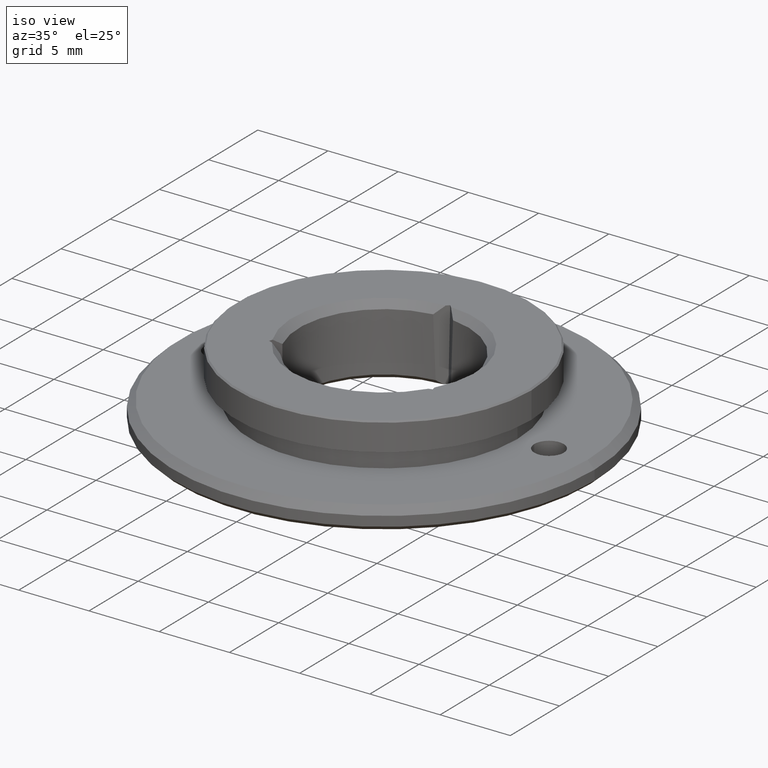
[diagram: clean part render]
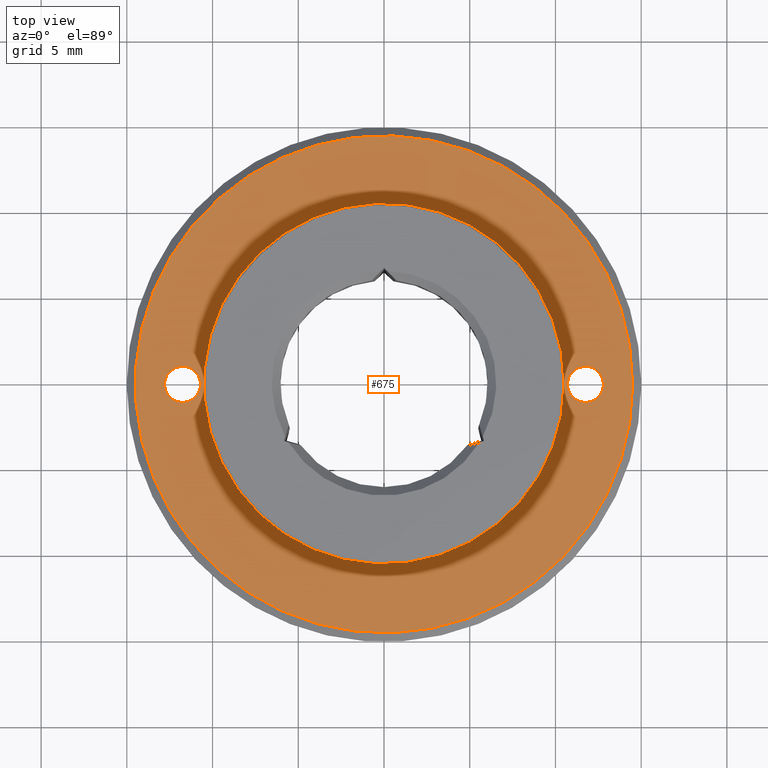
[diagram: tour spotlight — one face highlighted and labeled with its STEP entity id]
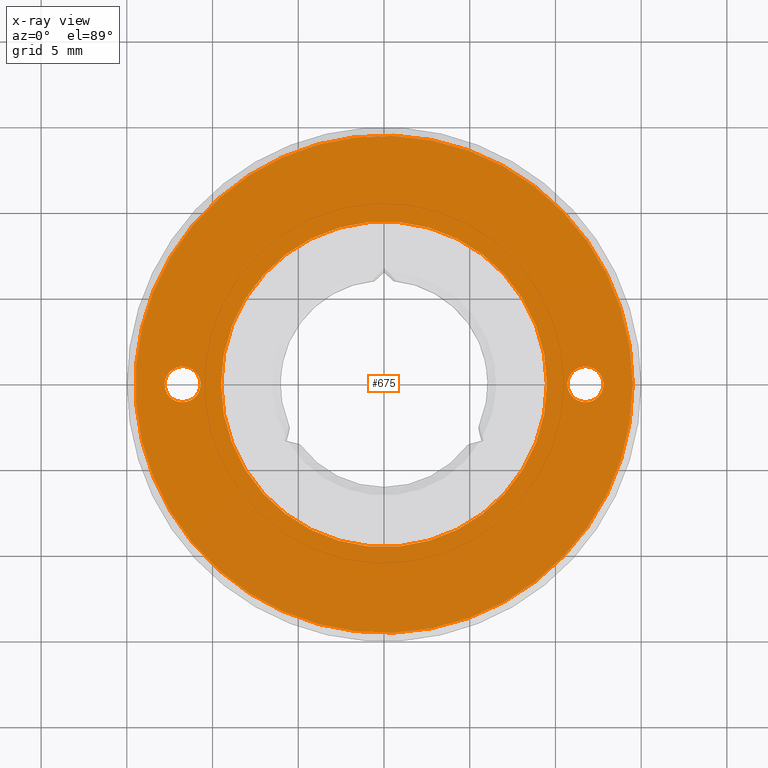
[diagram: x-ray of the same camera — body ghosted, this tour face saturated]
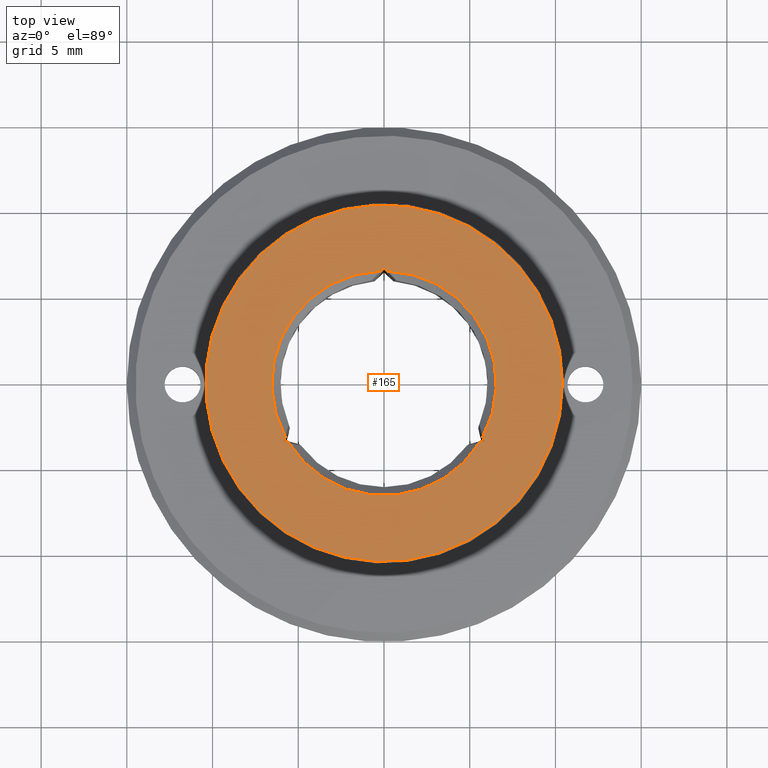
[diagram: tour spotlight — one face highlighted and labeled with its STEP entity id]
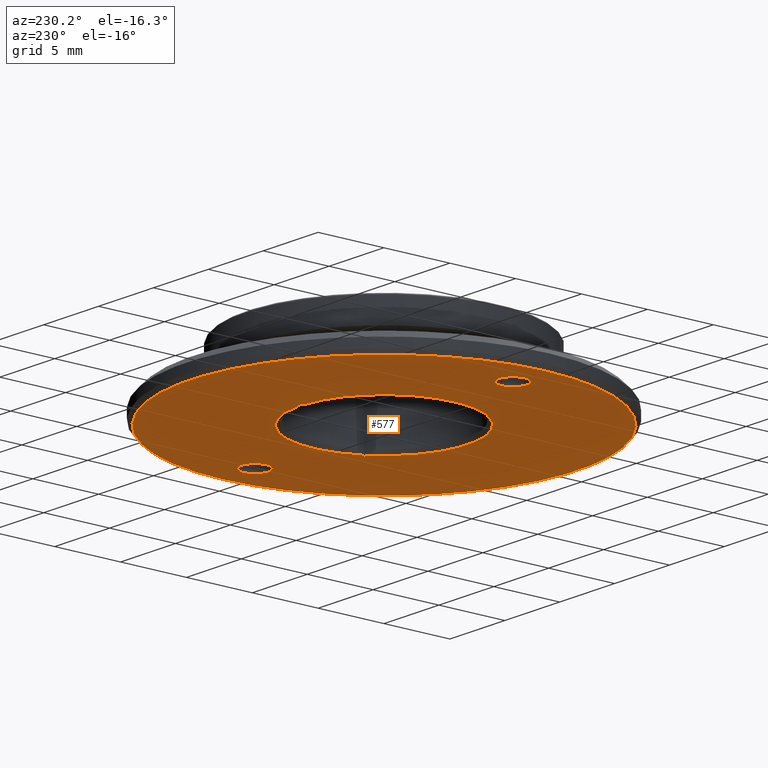
[diagram: tour spotlight — one face highlighted and labeled with its STEP entity id]
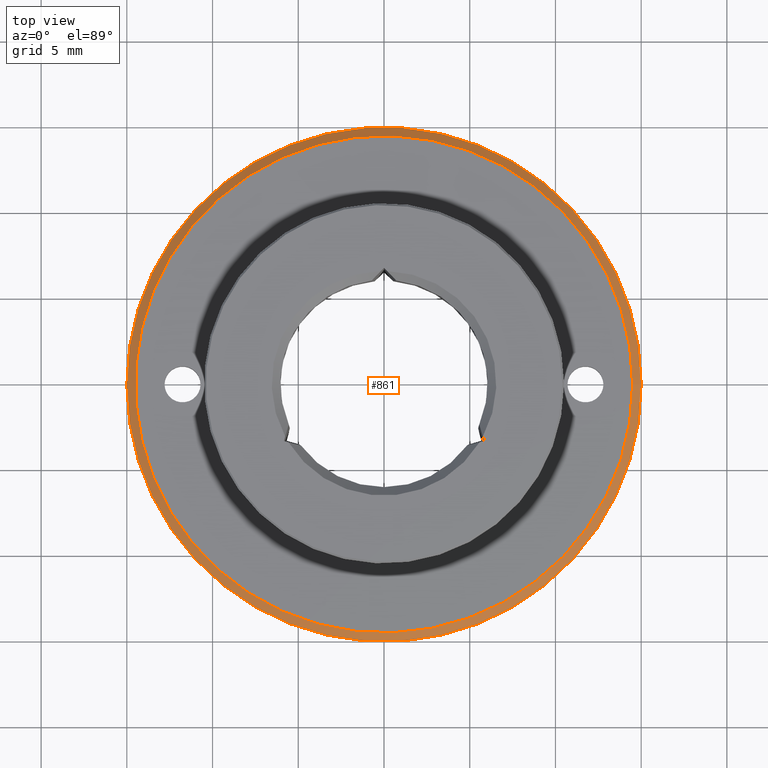
[diagram: tour spotlight — one face highlighted and labeled with its STEP entity id]
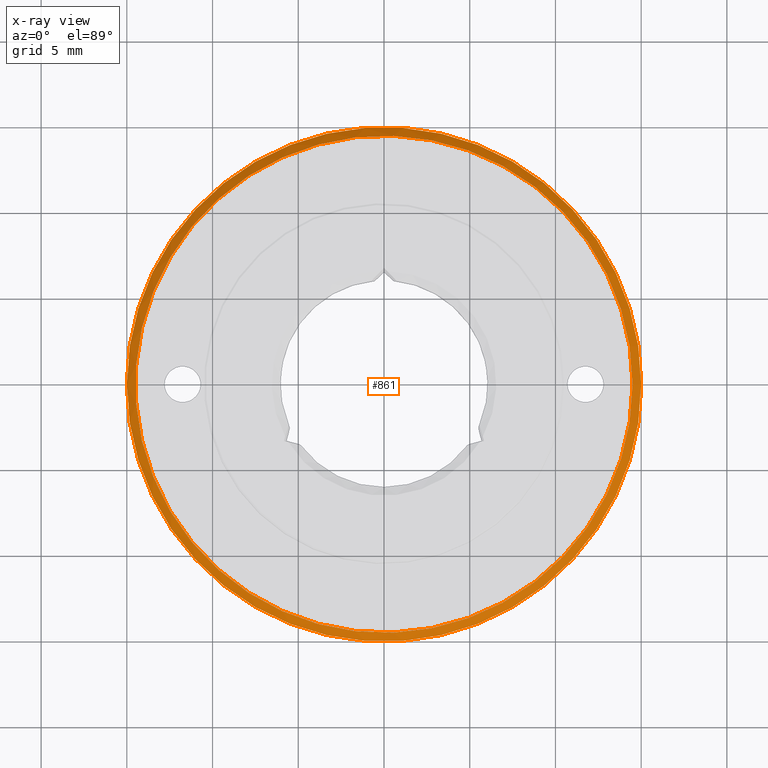
[diagram: x-ray of the same camera — body ghosted, this tour face saturated]
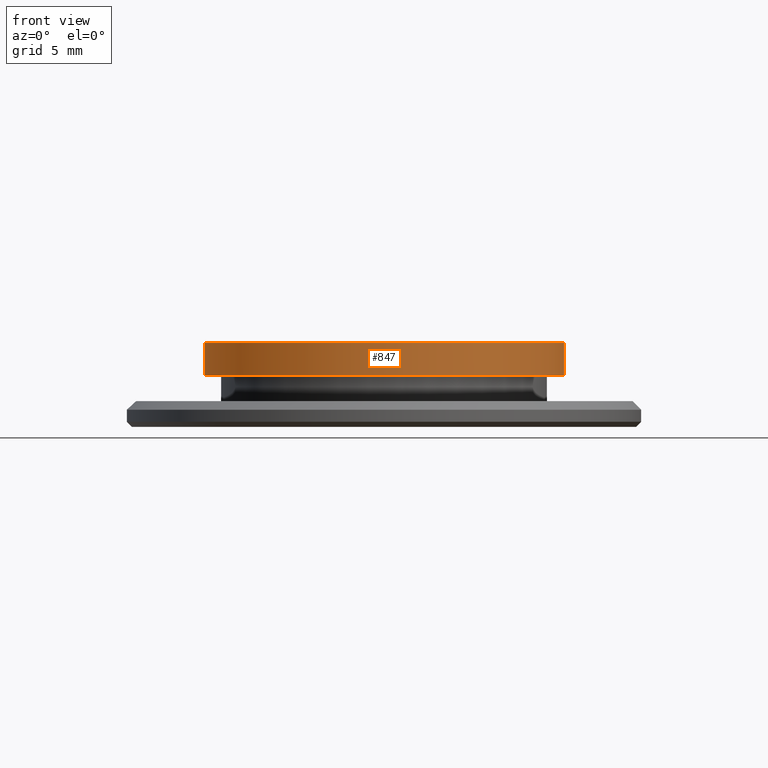
[diagram: tour spotlight — one face highlighted and labeled with its STEP entity id]
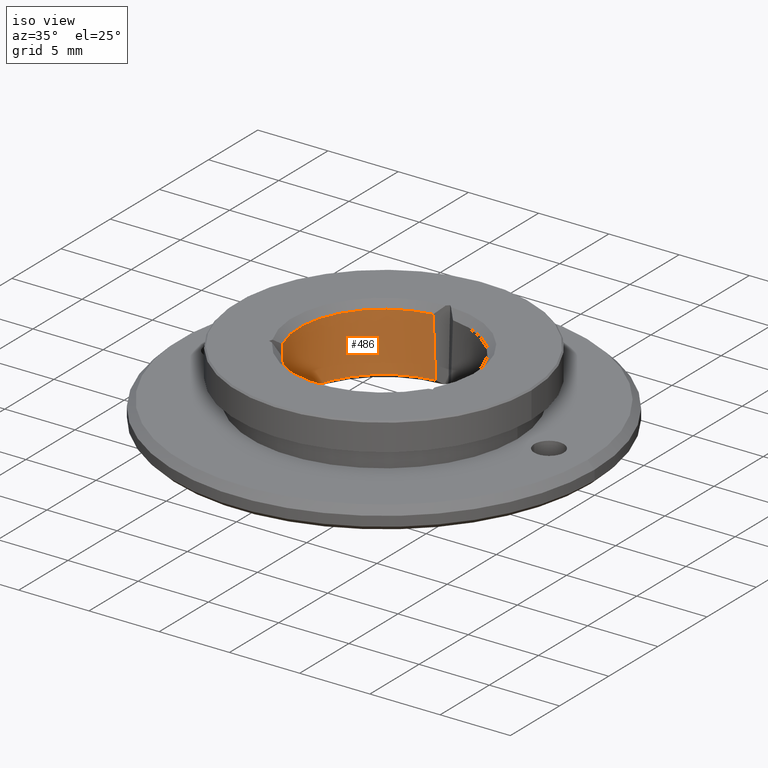
[diagram: tour spotlight — one face highlighted and labeled with its STEP entity id]
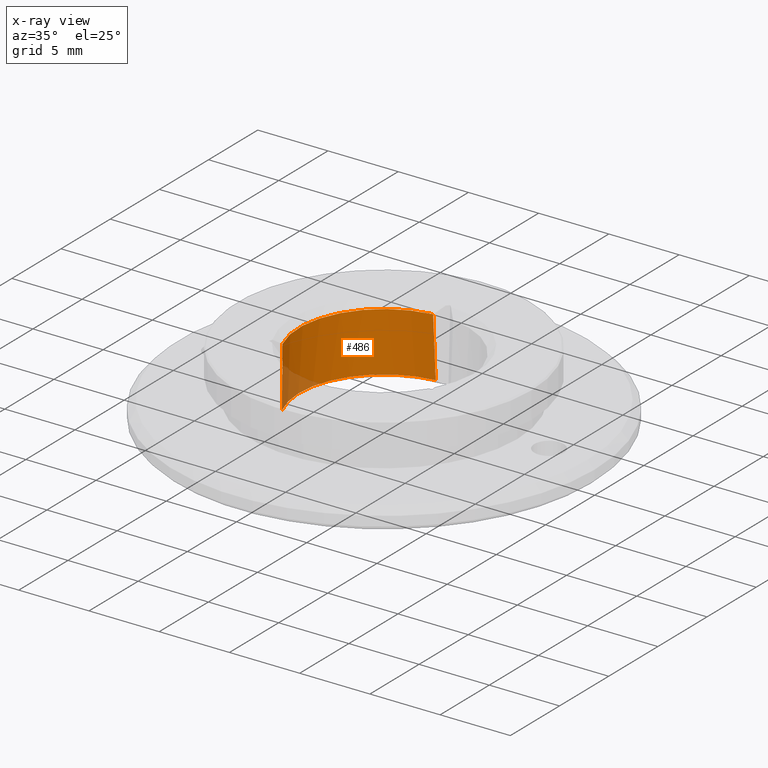
[diagram: x-ray of the same camera — body ghosted, this tour face saturated]
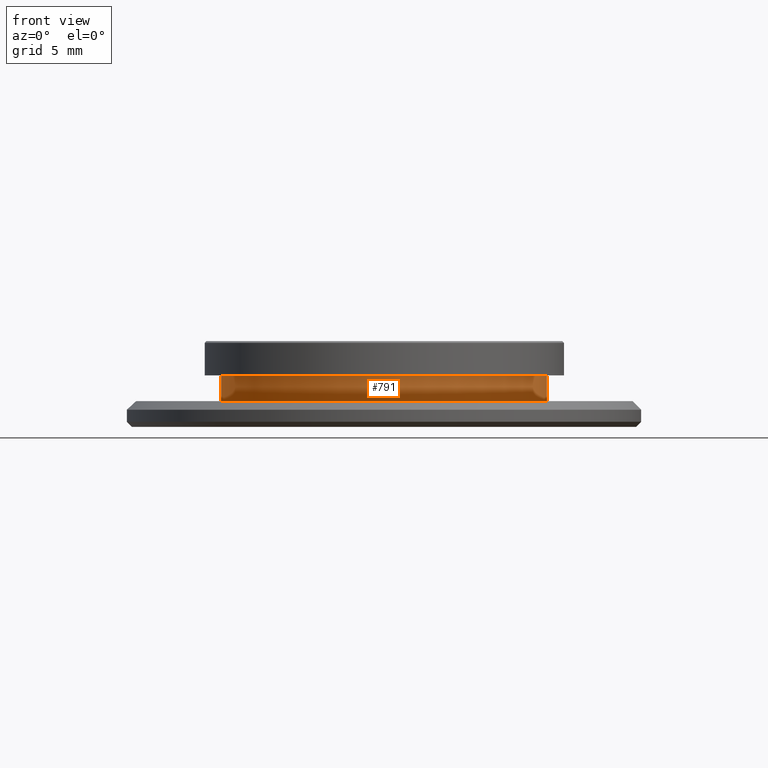
[diagram: tour spotlight — one face highlighted and labeled with its STEP entity id]
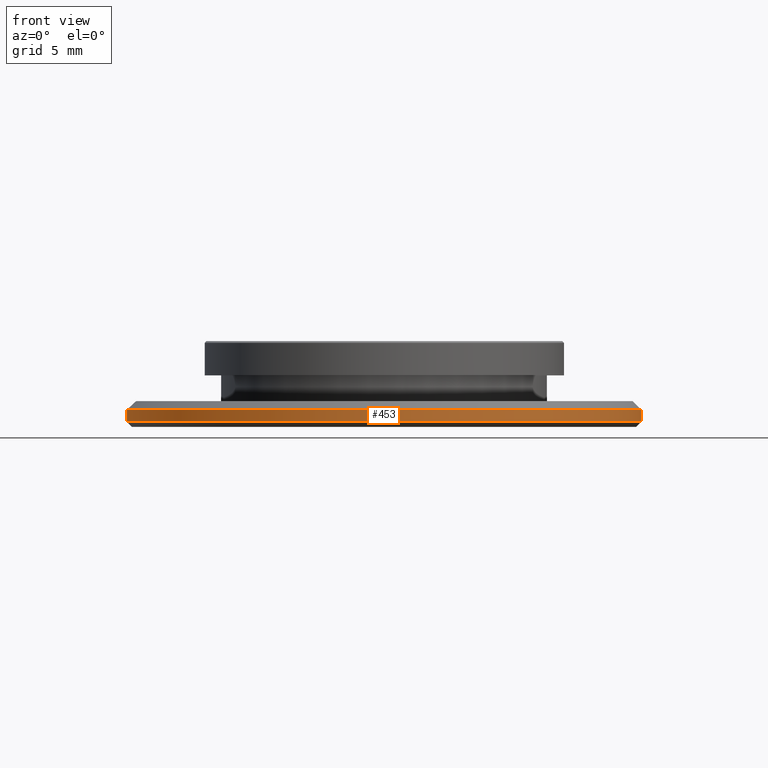
[diagram: tour spotlight — one face highlighted and labeled with its STEP entity id]
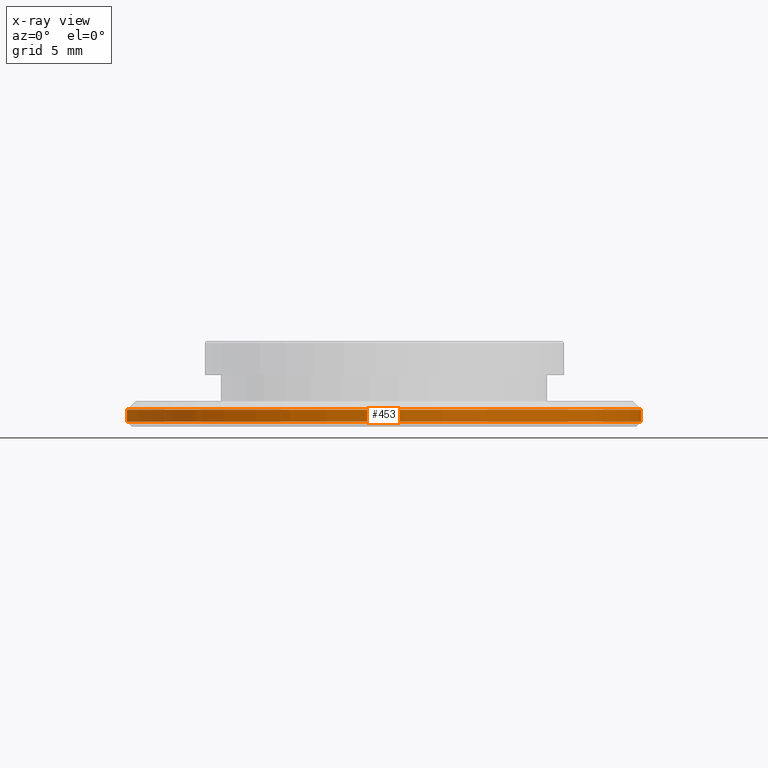
[diagram: x-ray of the same camera — body ghosted, this tour face saturated]
A machine part: a face-by-face anatomy tour. The part has 27 B-rep faces; the first image is the clean iso view, then the 8 largest visible faces are spotlighted one at a time (largest first), each with its STEP entity span.

Face 1 — top view, entity #675. An x-ray twin of the same camera follows (body ghosted, this face saturated) — the face is partly hidden behind the body. In plain terms, the highlighted planar face has unit normal (0, 0, -1).
Definition (entity closure, byte-faithful):
#2 = ORIENTED_EDGE ( 'NONE', *, *, #492, .F. ) ;
#14 = VERTEX_POINT ( 'NONE', #804 ) ;
#37 = CARTESIAN_POINT ( 'NONE',  ( 0.0000000000000000000, 0.0000000000000000000, -1.000000000000001776 ) ) ;
#47 = DIRECTION ( 'NONE',  ( 1.000000000000000000, 0.0000000000000000000, 0.0000000000000000000 ) ) ;
#51 = EDGE_LOOP ( 'NONE', ( #839 ) ) ;
#52 = FACE_BOUND ( 'NONE', #438, .T. ) ;
#55 = ORIENTED_EDGE ( 'NONE', *, *, #128, .T. ) ;
#61 = FACE_BOUND ( 'NONE', #733, .T. ) ;
#68 = DIRECTION ( 'NONE',  ( -1.000000000000000000, 0.0000000000000000000, 0.0000000000000000000 ) ) ;
#93 = DIRECTION ( 'NONE',  ( 1.000000000000000000, 0.0000000000000000000, 0.0000000000000000000 ) ) ;
#104 = CARTESIAN_POINT ( 'NONE',  ( 0.0000000000000000000, 0.0000000000000000000, -1.000000000000001776 ) ) ;
#113 = CIRCLE ( 'NONE', #241, 9.499999999999994671 ) ;
#120 = FACE_BOUND ( 'NONE', #51, .T. ) ;
#128 = EDGE_CURVE ( 'NONE', #548, #548, #684, .T. ) ;
#141 = VERTEX_POINT ( 'NONE', #682 ) ;
#206 = CARTESIAN_POINT ( 'NONE',  ( 14.49999999999999822, 0.0000000000000000000, -1.000000000000001776 ) ) ;
#234 = DIRECTION ( 'NONE',  ( 0.0000000000000000000, 0.0000000000000000000, -1.000000000000000000 ) ) ;
#241 = AXIS2_PLACEMENT_3D ( 'NONE', #37, #712, #93 ) ;
#244 = DIRECTION ( 'NONE',  ( -1.000000000000000000, 0.0000000000000000000, -0.0000000000000000000 ) ) ;
#274 = VERTEX_POINT ( 'NONE', #739 ) ;
#308 = EDGE_CURVE ( 'NONE', #141, #141, #420, .T. ) ;
#325 = FACE_OUTER_BOUND ( 'NONE', #867, .T. ) ;
#328 = DIRECTION ( 'NONE',  ( 0.0000000000000000000, 0.0000000000000000000, -1.000000000000000000 ) ) ;
#348 = CIRCLE ( 'NONE', #513, 1.049999999999988498 ) ;
#380 = CARTESIAN_POINT ( 'NONE',  ( 11.75000000000000000, 0.0000000000000000000, -1.000000000000001776 ) ) ;
#400 = DIRECTION ( 'NONE',  ( 0.0000000000000000000, 0.0000000000000000000, -1.000000000000000000 ) ) ;
#420 = CIRCLE ( 'NONE', #730, 1.049999999999988498 ) ;
#438 = EDGE_LOOP ( 'NONE', ( #2 ) ) ;
#440 = ORIENTED_EDGE ( 'NONE', *, *, #308, .T. ) ;
#492 = EDGE_CURVE ( 'NONE', #14, #14, #113, .T. ) ;
#512 = DIRECTION ( 'NONE',  ( -1.000000000000000000, 0.0000000000000000000, 0.0000000000000000000 ) ) ;
#513 = AXIS2_PLACEMENT_3D ( 'NONE', #380, #234, #512 ) ;
#548 = VERTEX_POINT ( 'NONE', #206 ) ;
#549 = EDGE_CURVE ( 'NONE', #274, #274, #348, .T. ) ;
#560 = DIRECTION ( 'NONE',  ( -0.0000000000000000000, -0.0000000000000000000, 1.000000000000000000 ) ) ;
#603 = CARTESIAN_POINT ( 'NONE',  ( 0.0000000000000000000, 9.499999999999994671, -1.000000000000001776 ) ) ;
#645 = AXIS2_PLACEMENT_3D ( 'NONE', #104, #560, #47 ) ;
#666 = CARTESIAN_POINT ( 'NONE',  ( -11.75000000000000000, 0.0000000000000000000, -1.000000000000001776 ) ) ;
#675 = ADVANCED_FACE ( 'NONE', ( #61, #120, #52, #325 ), #724, .F. ) ;
#682 = CARTESIAN_POINT ( 'NONE',  ( -12.79999999999998828, 0.0000000000000000000, -1.000000000000001776 ) ) ;
#684 = CIRCLE ( 'NONE', #645, 14.49999999999999822 ) ;
#712 = DIRECTION ( 'NONE',  ( -0.0000000000000000000, -0.0000000000000000000, 1.000000000000000000 ) ) ;
#724 = PLANE ( 'NONE',  #745 ) ;
#730 = AXIS2_PLACEMENT_3D ( 'NONE', #666, #328, #68 ) ;
#733 = EDGE_LOOP ( 'NONE', ( #440 ) ) ;
#739 = CARTESIAN_POINT ( 'NONE',  ( 10.70000000000001172, 0.0000000000000000000, -1.000000000000001776 ) ) ;
#745 = AXIS2_PLACEMENT_3D ( 'NONE', #603, #400, #244 ) ;
#804 = CARTESIAN_POINT ( 'NONE',  ( 9.499999999999994671, 0.0000000000000000000, -1.000000000000001776 ) ) ;
#839 = ORIENTED_EDGE ( 'NONE', *, *, #549, .T. ) ;
#867 = EDGE_LOOP ( 'NONE', ( #55 ) ) ;

Face 2 — top view, entity #165. In plain terms, the highlighted planar face has unit normal (0, 0, -1).
Definition (entity closure, byte-faithful):
#15 = VERTEX_POINT ( 'NONE', #323 ) ;
#22 = CARTESIAN_POINT ( 'NONE',  ( 0.1854387021565571947, 6.547374472851121396, 2.500000000000001776 ) ) ;
#25 = DIRECTION ( 'NONE',  ( -0.0000000000000000000, -0.0000000000000000000, 1.000000000000000000 ) ) ;
#30 = VERTEX_POINT ( 'NONE', #178 ) ;
#35 = DIRECTION ( 'NONE',  ( 0.2588190451025212946, -0.9659258262890680902, 0.0000000000000000000 ) ) ;
#40 = CARTESIAN_POINT ( 'NONE',  ( 2.869690330493986696, -4.159830115391518923, 2.500000000000001332 ) ) ;
#65 = VERTEX_POINT ( 'NONE', #676 ) ;
#66 = VERTEX_POINT ( 'NONE', #706 ) ;
#72 = VERTEX_POINT ( 'NONE', #312 ) ;
#102 = ORIENTED_EDGE ( 'NONE', *, *, #606, .T. ) ;
#109 = CARTESIAN_POINT ( 'NONE',  ( -0.09140658750383659492, 6.641406587503838388, 2.500000000000001332 ) ) ;
#124 = CARTESIAN_POINT ( 'NONE',  ( -2.869690330493739339, -4.159830115391582872, 2.500000000000001332 ) ) ;
#133 = EDGE_LOOP ( 'NONE', ( #664, #140, #370, #728, #467, #554, #102, #334, #871 ) ) ;
#140 = ORIENTED_EDGE ( 'NONE', *, *, #316, .T. ) ;
#144 = CIRCLE ( 'NONE', #273, 6.550000000000000711 ) ;
#158 = LINE ( 'NONE', #124, #556 ) ;
#165 = ADVANCED_FACE ( 'NONE', ( #245, #800 ), #529, .F. ) ;
#167 = VERTEX_POINT ( 'NONE', #344 ) ;
#173 = AXIS2_PLACEMENT_3D ( 'NONE', #427, #695, #220 ) ;
#178 = CARTESIAN_POINT ( 'NONE',  ( -5.976388874223077395E-16, 6.732813175007672513, 2.500000000000001332 ) ) ;
#185 = EDGE_CURVE ( 'NONE', #72, #243, #285, .T. ) ;
#195 = DIRECTION ( 'NONE',  ( 0.7071067811865535679, 0.7071067811865415775, 0.0000000000000000000 ) ) ;
#196 = CARTESIAN_POINT ( 'NONE',  ( 5.577473270500571623, -3.434281863337903307, 2.500000000000001776 ) ) ;
#198 = AXIS2_PLACEMENT_3D ( 'NONE', #465, #735, #601 ) ;
#220 = DIRECTION ( 'NONE',  ( 1.000000000000000000, 0.0000000000000000000, 0.0000000000000000000 ) ) ;
#230 = LINE ( 'NONE', #40, #583 ) ;
#243 = VERTEX_POINT ( 'NONE', #196 ) ;
#245 = FACE_BOUND ( 'NONE', #133, .T. ) ;
#251 = CARTESIAN_POINT ( 'NONE',  ( -2.961096917997767086, 7.343423527887715352, 2.500000000000001332 ) ) ;
#273 = AXIS2_PLACEMENT_3D ( 'NONE', #625, #25, #413 ) ;
#285 = CIRCLE ( 'NONE', #448, 6.550000000000000711 ) ;
#312 = CARTESIAN_POINT ( 'NONE',  ( -5.577473270500524549, -3.434281863337980578, 2.500000000000002220 ) ) ;
#316 = EDGE_CURVE ( 'NONE', #30, #346, #593, .T. ) ;
#323 = CARTESIAN_POINT ( 'NONE',  ( -5.830787248491194674, -3.366406587503864678, 2.500000000000000444 ) ) ;
#334 = ORIENTED_EDGE ( 'NONE', *, *, #710, .T. ) ;
#344 = CARTESIAN_POINT ( 'NONE',  ( 5.762911972657124515, -3.113092609513114617, 2.500000000000001332 ) ) ;
#346 = VERTEX_POINT ( 'NONE', #22 ) ;
#363 = CARTESIAN_POINT ( 'NONE',  ( -0.1854387021565554738, 6.547374472851121396, 2.500000000000001776 ) ) ;
#370 = ORIENTED_EDGE ( 'NONE', *, *, #718, .F. ) ;
#378 = CIRCLE ( 'NONE', #816, 6.550000000000000711 ) ;
#386 = LINE ( 'NONE', #109, #856 ) ;
#404 = DIRECTION ( 'NONE',  ( 1.000000000000000000, 0.0000000000000000000, 0.0000000000000000000 ) ) ;
#413 = DIRECTION ( 'NONE',  ( 1.000000000000000000, 0.0000000000000000000, 0.0000000000000000000 ) ) ;
#417 = EDGE_LOOP ( 'NONE', ( #714 ) ) ;
#427 = CARTESIAN_POINT ( 'NONE',  ( 0.0000000000000000000, 0.0000000000000000000, 2.500000000000001332 ) ) ;
#448 = AXIS2_PLACEMENT_3D ( 'NONE', #749, #738, #404 ) ;
#450 = VECTOR ( 'NONE', #463, 1000.000000000000227 ) ;
#452 = DIRECTION ( 'NONE',  ( -0.9659258262890612068, -0.2588190451025469407, 0.0000000000000000000 ) ) ;
#462 = VERTEX_POINT ( 'NONE', #550 ) ;
#463 = DIRECTION ( 'NONE',  ( 0.2588190451024985905, 0.9659258262890741964, 0.0000000000000000000 ) ) ;
#465 = CARTESIAN_POINT ( 'NONE',  ( 0.0000000000000000000, 6.550000000000000711, 2.500000000000001332 ) ) ;
#467 = ORIENTED_EDGE ( 'NONE', *, *, #597, .T. ) ;
#472 = EDGE_CURVE ( 'NONE', #65, #65, #853, .T. ) ;
#507 = LINE ( 'NONE', #717, #743 ) ;
#516 = DIRECTION ( 'NONE',  ( 1.000000000000000000, 0.0000000000000000000, 0.0000000000000000000 ) ) ;
#524 = VECTOR ( 'NONE', #525, 1000.000000000000114 ) ;
#525 = DIRECTION ( 'NONE',  ( 0.7071067811865602293, -0.7071067811865348052, 0.0000000000000000000 ) ) ;
#529 = PLANE ( 'NONE',  #198 ) ;
#531 = LINE ( 'NONE', #251, #450 ) ;
#550 = CARTESIAN_POINT ( 'NONE',  ( -5.762911972657084547, -3.113092609513188780, 2.500000000000001332 ) ) ;
#552 = EDGE_CURVE ( 'NONE', #167, #66, #507, .T. ) ;
#554 = ORIENTED_EDGE ( 'NONE', *, *, #185, .F. ) ;
#556 = VECTOR ( 'NONE', #795, 1000.000000000000114 ) ;
#583 = VECTOR ( 'NONE', #452, 1000.000000000000227 ) ;
#593 = LINE ( 'NONE', #866, #524 ) ;
#597 = EDGE_CURVE ( 'NONE', #66, #243, #230, .T. ) ;
#601 = DIRECTION ( 'NONE',  ( -1.000000000000000000, 0.0000000000000000000, -0.0000000000000000000 ) ) ;
#606 = EDGE_CURVE ( 'NONE', #72, #15, #158, .T. ) ;
#625 = CARTESIAN_POINT ( 'NONE',  ( 0.0000000000000000000, 0.0000000000000000000, 2.500000000000001332 ) ) ;
#635 = EDGE_CURVE ( 'NONE', #854, #30, #386, .T. ) ;
#664 = ORIENTED_EDGE ( 'NONE', *, *, #635, .T. ) ;
#673 = CARTESIAN_POINT ( 'NONE',  ( 0.0000000000000000000, 0.0000000000000000000, 2.500000000000001332 ) ) ;
#676 = CARTESIAN_POINT ( 'NONE',  ( 10.40000000000000568, 0.0000000000000000000, 2.500000000000001332 ) ) ;
#695 = DIRECTION ( 'NONE',  ( -0.0000000000000000000, -0.0000000000000000000, 1.000000000000000000 ) ) ;
#706 = CARTESIAN_POINT ( 'NONE',  ( 5.830787248491239971, -3.366406587503782522, 2.500000000000000444 ) ) ;
#710 = EDGE_CURVE ( 'NONE', #15, #462, #531, .T. ) ;
#714 = ORIENTED_EDGE ( 'NONE', *, *, #472, .T. ) ;
#717 = CARTESIAN_POINT ( 'NONE',  ( 2.961096917997558364, 7.343423527887734004, 2.500000000000001332 ) ) ;
#718 = EDGE_CURVE ( 'NONE', #167, #346, #378, .T. ) ;
#728 = ORIENTED_EDGE ( 'NONE', *, *, #552, .T. ) ;
#734 = DIRECTION ( 'NONE',  ( -0.0000000000000000000, -0.0000000000000000000, 1.000000000000000000 ) ) ;
#735 = DIRECTION ( 'NONE',  ( 0.0000000000000000000, 0.0000000000000000000, -1.000000000000000000 ) ) ;
#738 = DIRECTION ( 'NONE',  ( -0.0000000000000000000, -0.0000000000000000000, 1.000000000000000000 ) ) ;
#743 = VECTOR ( 'NONE', #35, 1000.000000000000114 ) ;
#749 = CARTESIAN_POINT ( 'NONE',  ( 0.0000000000000000000, 0.0000000000000000000, 2.500000000000001332 ) ) ;
#795 = DIRECTION ( 'NONE',  ( -0.9659258262890672020, 0.2588190451025247363, 0.0000000000000000000 ) ) ;
#800 = FACE_OUTER_BOUND ( 'NONE', #417, .T. ) ;
#816 = AXIS2_PLACEMENT_3D ( 'NONE', #673, #734, #516 ) ;
#835 = EDGE_CURVE ( 'NONE', #854, #462, #144, .T. ) ;
#853 = CIRCLE ( 'NONE', #173, 10.40000000000000568 ) ;
#854 = VERTEX_POINT ( 'NONE', #363 ) ;
#856 = VECTOR ( 'NONE', #195, 1000.000000000000000 ) ;
#866 = CARTESIAN_POINT ( 'NONE',  ( 0.09140658750383579001, 6.641406587503839276, 2.500000000000001332 ) ) ;
#871 = ORIENTED_EDGE ( 'NONE', *, *, #835, .F. ) ;

Face 3 — auxiliary view, entity #577. In plain terms, the highlighted planar face has unit normal (0, -0, 1).
Definition (entity closure, byte-faithful):
#5 = CARTESIAN_POINT ( 'NONE',  ( -12.79999999999998828, 0.0000000000000000000, -2.500000000000004441 ) ) ;
#9 = CIRCLE ( 'NONE', #658, 6.350000000000008527 ) ;
#13 = CIRCLE ( 'NONE', #539, 1.049999999999988498 ) ;
#16 = CARTESIAN_POINT ( 'NONE',  ( 10.70000000000001172, 0.0000000000000000000, -2.500000000000004441 ) ) ;
#31 = CARTESIAN_POINT ( 'NONE',  ( -0.2135933081210453777, 6.346406691878955897, -2.500000000000003109 ) ) ;
#43 = FACE_BOUND ( 'NONE', #482, .T. ) ;
#71 = DIRECTION ( 'NONE',  ( 1.000000000000000000, 0.0000000000000000000, 0.0000000000000000000 ) ) ;
#74 = CARTESIAN_POINT ( 'NONE',  ( -5.681126648825904901, -3.280000000000026450, -2.500000000000003109 ) ) ;
#80 = EDGE_CURVE ( 'NONE', #92, #707, #142, .T. ) ;
#92 = VERTEX_POINT ( 'NONE', #369 ) ;
#100 = VERTEX_POINT ( 'NONE', #655 ) ;
#101 = DIRECTION ( 'NONE',  ( 0.0000000000000000000, -0.0000000000000000000, 1.000000000000000000 ) ) ;
#107 = DIRECTION ( 'NONE',  ( -0.0000000000000000000, -0.0000000000000000000, 1.000000000000000000 ) ) ;
#112 = VECTOR ( 'NONE', #428, 1000.000000000000000 ) ;
#117 = DIRECTION ( 'NONE',  ( -0.0000000000000000000, -0.0000000000000000000, 1.000000000000000000 ) ) ;
#125 = CARTESIAN_POINT ( 'NONE',  ( 11.75000000000000000, 0.0000000000000000000, -2.500000000000004441 ) ) ;
#127 = VERTEX_POINT ( 'NONE', #5 ) ;
#131 = AXIS2_PLACEMENT_3D ( 'NONE', #383, #101, #654 ) ;
#142 = CIRCLE ( 'NONE', #333, 6.350000000000008527 ) ;
#153 = EDGE_CURVE ( 'NONE', #585, #707, #225, .T. ) ;
#159 = CIRCLE ( 'NONE', #628, 14.70000000000000462 ) ;
#174 = VECTOR ( 'NONE', #688, 1000.000000000000000 ) ;
#177 = EDGE_CURVE ( 'NONE', #483, #483, #669, .T. ) ;
#184 = DIRECTION ( 'NONE',  ( -0.0000000000000000000, -0.0000000000000000000, 1.000000000000000000 ) ) ;
#186 = VECTOR ( 'NONE', #514, 1000.000000000000114 ) ;
#192 = CARTESIAN_POINT ( 'NONE',  ( 0.2135933081210505680, 6.346406691878955897, -2.500000000000003109 ) ) ;
#221 = LINE ( 'NONE', #498, #112 ) ;
#225 = LINE ( 'NONE', #240, #186 ) ;
#231 = VECTOR ( 'NONE', #797, 1000.000000000000114 ) ;
#239 = AXIS2_PLACEMENT_3D ( 'NONE', #318, #117, #397 ) ;
#240 = CARTESIAN_POINT ( 'NONE',  ( 5.681126648825947534, -3.279999999999946958, -2.500000000000003109 ) ) ;
#254 = ORIENTED_EDGE ( 'NONE', *, *, #774, .F. ) ;
#255 = CARTESIAN_POINT ( 'NONE',  ( 5.602946071975287268, -2.988226115028243424, -2.500000000000003109 ) ) ;
#261 = CARTESIAN_POINT ( 'NONE',  ( 0.0000000000000000000, 0.0000000000000000000, -2.500000000000003109 ) ) ;
#267 = CIRCLE ( 'NONE', #239, 6.350000000000008527 ) ;
#276 = LINE ( 'NONE', #555, #174 ) ;
#277 = EDGE_CURVE ( 'NONE', #418, #418, #159, .T. ) ;
#280 = VERTEX_POINT ( 'NONE', #192 ) ;
#283 = ORIENTED_EDGE ( 'NONE', *, *, #177, .F. ) ;
#287 = EDGE_CURVE ( 'NONE', #821, #830, #469, .T. ) ;
#288 = EDGE_CURVE ( 'NONE', #446, #830, #9, .T. ) ;
#292 = EDGE_CURVE ( 'NONE', #756, #280, #267, .T. ) ;
#294 = ORIENTED_EDGE ( 'NONE', *, *, #337, .F. ) ;
#295 = LINE ( 'NONE', #609, #502 ) ;
#301 = FACE_BOUND ( 'NONE', #506, .T. ) ;
#315 = FACE_OUTER_BOUND ( 'NONE', #864, .T. ) ;
#318 = CARTESIAN_POINT ( 'NONE',  ( 0.0000000000000000000, 0.0000000000000000000, -2.500000000000003109 ) ) ;
#330 = DIRECTION ( 'NONE',  ( -1.000000000000000000, 0.0000000000000000000, 0.0000000000000000000 ) ) ;
#333 = AXIS2_PLACEMENT_3D ( 'NONE', #495, #107, #638 ) ;
#335 = CARTESIAN_POINT ( 'NONE',  ( -11.75000000000000000, 0.0000000000000000000, -2.500000000000004441 ) ) ;
#337 = EDGE_CURVE ( 'NONE', #446, #100, #221, .T. ) ;
#349 = EDGE_CURVE ( 'NONE', #92, #821, #434, .T. ) ;
#369 = CARTESIAN_POINT ( 'NONE',  ( -5.389352763854197370, -3.358180576850688492, -2.500000000000003109 ) ) ;
#383 = CARTESIAN_POINT ( 'NONE',  ( 0.0000000000000000000, 14.70000000000000462, -2.500000000000003109 ) ) ;
#397 = DIRECTION ( 'NONE',  ( 1.000000000000000000, 0.0000000000000000000, 0.0000000000000000000 ) ) ;
#418 = VERTEX_POINT ( 'NONE', #826 ) ;
#426 = CARTESIAN_POINT ( 'NONE',  ( -5.602946071975249964, -2.988226115028314034, -2.500000000000003109 ) ) ;
#428 = DIRECTION ( 'NONE',  ( 0.7071067811865535679, 0.7071067811865415775, -0.0000000000000000000 ) ) ;
#432 = CARTESIAN_POINT ( 'NONE',  ( -5.681126648825904901, -3.280000000000026450, -2.500000000000003109 ) ) ;
#434 = LINE ( 'NONE', #74, #799 ) ;
#446 = VERTEX_POINT ( 'NONE', #31 ) ;
#447 = CARTESIAN_POINT ( 'NONE',  ( 5.681126648825947534, -3.279999999999946958, -2.500000000000003109 ) ) ;
#466 = EDGE_CURVE ( 'NONE', #100, #280, #295, .T. ) ;
#469 = LINE ( 'NONE', #521, #231 ) ;
#478 = ORIENTED_EDGE ( 'NONE', *, *, #287, .F. ) ;
#482 = EDGE_LOOP ( 'NONE', ( #693, #661, #294, #751, #478, #496, #519, #588, #254 ) ) ;
#483 = VERTEX_POINT ( 'NONE', #16 ) ;
#495 = CARTESIAN_POINT ( 'NONE',  ( 0.0000000000000000000, 0.0000000000000000000, -2.500000000000003109 ) ) ;
#496 = ORIENTED_EDGE ( 'NONE', *, *, #349, .F. ) ;
#498 = CARTESIAN_POINT ( 'NONE',  ( 0.0000000000000000000, 6.559999999999999609, -2.500000000000003109 ) ) ;
#502 = VECTOR ( 'NONE', #764, 1000.000000000000114 ) ;
#506 = EDGE_LOOP ( 'NONE', ( #534 ) ) ;
#514 = DIRECTION ( 'NONE',  ( -0.9659258262890612068, -0.2588190451025469963, 0.0000000000000000000 ) ) ;
#519 = ORIENTED_EDGE ( 'NONE', *, *, #80, .T. ) ;
#521 = CARTESIAN_POINT ( 'NONE',  ( -5.681126648825904901, -3.280000000000026450, -2.500000000000003109 ) ) ;
#534 = ORIENTED_EDGE ( 'NONE', *, *, #642, .F. ) ;
#535 = DIRECTION ( 'NONE',  ( -0.0000000000000000000, -0.0000000000000000000, -1.000000000000000000 ) ) ;
#539 = AXIS2_PLACEMENT_3D ( 'NONE', #335, #657, #330 ) ;
#542 = EDGE_LOOP ( 'NONE', ( #283 ) ) ;
#555 = CARTESIAN_POINT ( 'NONE',  ( 5.681126648825947534, -3.279999999999946958, -2.500000000000003109 ) ) ;
#567 = FACE_BOUND ( 'NONE', #542, .T. ) ;
#577 = ADVANCED_FACE ( 'NONE', ( #301, #567, #315, #43 ), #779, .F. ) ;
#585 = VERTEX_POINT ( 'NONE', #447 ) ;
#586 = CARTESIAN_POINT ( 'NONE',  ( 5.389352763854241779, -3.358180576850615218, -2.500000000000003109 ) ) ;
#588 = ORIENTED_EDGE ( 'NONE', *, *, #153, .F. ) ;
#598 = CARTESIAN_POINT ( 'NONE',  ( 0.0000000000000000000, 0.0000000000000000000, -2.500000000000003109 ) ) ;
#609 = CARTESIAN_POINT ( 'NONE',  ( 0.0000000000000000000, 6.559999999999999609, -2.500000000000003109 ) ) ;
#613 = ORIENTED_EDGE ( 'NONE', *, *, #277, .F. ) ;
#628 = AXIS2_PLACEMENT_3D ( 'NONE', #598, #679, #71 ) ;
#638 = DIRECTION ( 'NONE',  ( 1.000000000000000000, 0.0000000000000000000, 0.0000000000000000000 ) ) ;
#642 = EDGE_CURVE ( 'NONE', #127, #127, #13, .T. ) ;
#654 = DIRECTION ( 'NONE',  ( 1.000000000000000000, 0.0000000000000000000, 0.0000000000000000000 ) ) ;
#655 = CARTESIAN_POINT ( 'NONE',  ( 0.0000000000000000000, 6.559999999999999609, -2.500000000000003109 ) ) ;
#657 = DIRECTION ( 'NONE',  ( -0.0000000000000000000, -0.0000000000000000000, -1.000000000000000000 ) ) ;
#658 = AXIS2_PLACEMENT_3D ( 'NONE', #261, #184, #809 ) ;
#661 = ORIENTED_EDGE ( 'NONE', *, *, #466, .F. ) ;
#669 = CIRCLE ( 'NONE', #828, 1.049999999999988498 ) ;
#679 = DIRECTION ( 'NONE',  ( -0.0000000000000000000, -0.0000000000000000000, 1.000000000000000000 ) ) ;
#688 = DIRECTION ( 'NONE',  ( 0.2588190451025213501, -0.9659258262890680902, -0.0000000000000000000 ) ) ;
#693 = ORIENTED_EDGE ( 'NONE', *, *, #292, .T. ) ;
#707 = VERTEX_POINT ( 'NONE', #586 ) ;
#751 = ORIENTED_EDGE ( 'NONE', *, *, #288, .T. ) ;
#756 = VERTEX_POINT ( 'NONE', #255 ) ;
#764 = DIRECTION ( 'NONE',  ( 0.7071067811865602293, -0.7071067811865348052, 0.0000000000000000000 ) ) ;
#774 = EDGE_CURVE ( 'NONE', #756, #585, #276, .T. ) ;
#779 = PLANE ( 'NONE',  #131 ) ;
#797 = DIRECTION ( 'NONE',  ( 0.2588190451024986460, 0.9659258262890741964, 0.0000000000000000000 ) ) ;
#799 = VECTOR ( 'NONE', #823, 1000.000000000000227 ) ;
#809 = DIRECTION ( 'NONE',  ( 1.000000000000000000, 0.0000000000000000000, 0.0000000000000000000 ) ) ;
#815 = DIRECTION ( 'NONE',  ( -1.000000000000000000, 0.0000000000000000000, 0.0000000000000000000 ) ) ;
#821 = VERTEX_POINT ( 'NONE', #432 ) ;
#823 = DIRECTION ( 'NONE',  ( -0.9659258262890672020, 0.2588190451025247363, -0.0000000000000000000 ) ) ;
#826 = CARTESIAN_POINT ( 'NONE',  ( 14.70000000000000462, 0.0000000000000000000, -2.500000000000003109 ) ) ;
#828 = AXIS2_PLACEMENT_3D ( 'NONE', #125, #535, #815 ) ;
#830 = VERTEX_POINT ( 'NONE', #426 ) ;
#864 = EDGE_LOOP ( 'NONE', ( #613 ) ) ;

Face 4 — top view, entity #861. An x-ray twin of the same camera follows (body ghosted, this face saturated) — the face is partly hidden behind the body. In plain terms, the highlighted conical surface has half-angle 45 deg.
Definition (entity closure, byte-faithful):
#3 = FACE_BOUND ( 'NONE', #213, .T. ) ;
#11 = CIRCLE ( 'NONE', #536, 15.00000000000000000 ) ;
#47 = DIRECTION ( 'NONE',  ( 1.000000000000000000, 0.0000000000000000000, 0.0000000000000000000 ) ) ;
#70 = DIRECTION ( 'NONE',  ( -1.000000000000000000, 0.0000000000000000000, 0.0000000000000000000 ) ) ;
#104 = CARTESIAN_POINT ( 'NONE',  ( 0.0000000000000000000, 0.0000000000000000000, -1.000000000000001776 ) ) ;
#128 = EDGE_CURVE ( 'NONE', #548, #548, #684, .T. ) ;
#193 = CARTESIAN_POINT ( 'NONE',  ( 15.00000000000000000, 0.0000000000000000000, -1.500000000000002220 ) ) ;
#194 = ORIENTED_EDGE ( 'NONE', *, *, #520, .T. ) ;
#206 = CARTESIAN_POINT ( 'NONE',  ( 14.49999999999999822, 0.0000000000000000000, -1.000000000000001776 ) ) ;
#213 = EDGE_LOOP ( 'NONE', ( #458 ) ) ;
#253 = VERTEX_POINT ( 'NONE', #193 ) ;
#265 = FACE_OUTER_BOUND ( 'NONE', #761, .T. ) ;
#374 = CARTESIAN_POINT ( 'NONE',  ( 0.0000000000000000000, 0.0000000000000000000, -1.500000000000002220 ) ) ;
#458 = ORIENTED_EDGE ( 'NONE', *, *, #128, .F. ) ;
#510 = DIRECTION ( 'NONE',  ( 1.000000000000000000, 0.0000000000000000000, 0.0000000000000000000 ) ) ;
#520 = EDGE_CURVE ( 'NONE', #253, #253, #11, .T. ) ;
#536 = AXIS2_PLACEMENT_3D ( 'NONE', #374, #841, #510 ) ;
#548 = VERTEX_POINT ( 'NONE', #206 ) ;
#557 = AXIS2_PLACEMENT_3D ( 'NONE', #608, #678, #70 ) ;
#560 = DIRECTION ( 'NONE',  ( -0.0000000000000000000, -0.0000000000000000000, 1.000000000000000000 ) ) ;
#584 = CONICAL_SURFACE ( 'NONE', #557, 15.00000000000000000, 0.7853981633974482790 ) ;
#608 = CARTESIAN_POINT ( 'NONE',  ( 0.0000000000000000000, 0.0000000000000000000, -1.500000000000002220 ) ) ;
#645 = AXIS2_PLACEMENT_3D ( 'NONE', #104, #560, #47 ) ;
#678 = DIRECTION ( 'NONE',  ( 0.0000000000000000000, 0.0000000000000000000, -1.000000000000000000 ) ) ;
#684 = CIRCLE ( 'NONE', #645, 14.49999999999999822 ) ;
#761 = EDGE_LOOP ( 'NONE', ( #194 ) ) ;
#841 = DIRECTION ( 'NONE',  ( -0.0000000000000000000, -0.0000000000000000000, 1.000000000000000000 ) ) ;
#861 = ADVANCED_FACE ( 'NONE', ( #3, #265 ), #584, .T. ) ;

Face 5 — front view, entity #847. In plain terms, the highlighted cylindrical surface (bore or boss wall) has radius 10.5 mm, axis along (-0, -0, 1).
Definition (entity closure, byte-faithful):
#10 = DIRECTION ( 'NONE',  ( 1.000000000000000000, 0.0000000000000000000, 0.0000000000000000000 ) ) ;
#84 = DIRECTION ( 'NONE',  ( 1.000000000000000000, 0.0000000000000000000, 0.0000000000000000000 ) ) ;
#89 = CIRCLE ( 'NONE', #581, 10.49999999999999467 ) ;
#97 = ORIENTED_EDGE ( 'NONE', *, *, #742, .T. ) ;
#150 = CYLINDRICAL_SURFACE ( 'NONE', #780, 10.49999999999999467 ) ;
#191 = DIRECTION ( 'NONE',  ( -0.0000000000000000000, -0.0000000000000000000, 1.000000000000000000 ) ) ;
#203 = AXIS2_PLACEMENT_3D ( 'NONE', #868, #191, #860 ) ;
#284 = DIRECTION ( 'NONE',  ( -0.0000000000000000000, -0.0000000000000000000, 1.000000000000000000 ) ) ;
#347 = CARTESIAN_POINT ( 'NONE',  ( 0.0000000000000000000, 0.0000000000000000000, 3.500000000000002220 ) ) ;
#367 = CIRCLE ( 'NONE', #203, 10.49999999999999467 ) ;
#385 = EDGE_LOOP ( 'NONE', ( #388 ) ) ;
#388 = ORIENTED_EDGE ( 'NONE', *, *, #481, .F. ) ;
#416 = VERTEX_POINT ( 'NONE', #680 ) ;
#481 = EDGE_CURVE ( 'NONE', #416, #416, #89, .T. ) ;
#493 = CARTESIAN_POINT ( 'NONE',  ( 0.0000000000000000000, 0.0000000000000000000, 2.400000000000005240 ) ) ;
#543 = FACE_OUTER_BOUND ( 'NONE', #569, .T. ) ;
#559 = VERTEX_POINT ( 'NONE', #829 ) ;
#569 = EDGE_LOOP ( 'NONE', ( #97 ) ) ;
#581 = AXIS2_PLACEMENT_3D ( 'NONE', #493, #700, #10 ) ;
#680 = CARTESIAN_POINT ( 'NONE',  ( 10.49999999999999467, 0.0000000000000000000, 2.400000000000005240 ) ) ;
#699 = FACE_OUTER_BOUND ( 'NONE', #385, .T. ) ;
#700 = DIRECTION ( 'NONE',  ( -0.0000000000000000000, -0.0000000000000000000, 1.000000000000000000 ) ) ;
#742 = EDGE_CURVE ( 'NONE', #559, #559, #367, .T. ) ;
#780 = AXIS2_PLACEMENT_3D ( 'NONE', #347, #284, #84 ) ;
#829 = CARTESIAN_POINT ( 'NONE',  ( 10.49999999999999467, 0.0000000000000000000, 0.4999999999999995559 ) ) ;
#847 = ADVANCED_FACE ( 'NONE', ( #699, #543 ), #150, .T. ) ;
#860 = DIRECTION ( 'NONE',  ( 1.000000000000000000, 0.0000000000000000000, 0.0000000000000000000 ) ) ;
#868 = CARTESIAN_POINT ( 'NONE',  ( 0.0000000000000000000, 0.0000000000000000000, 0.4999999999999995559 ) ) ;

Face 6 — iso view, entity #486. An x-ray twin of the same camera follows (body ghosted, this face saturated) — the face is partly hidden behind the body. In plain terms, the highlighted cylindrical surface (partial cylindrical patch) has radius 6.05 mm, axis along (-0, -0, 1).
Definition (entity closure, byte-faithful):
#17 = EDGE_CURVE ( 'NONE', #656, #547, #703, .T. ) ;
#56 = CARTESIAN_POINT ( 'NONE',  ( -5.490635995654551849, -2.540751141537190616, -2.199999999999994404 ) ) ;
#83 = DIRECTION ( 'NONE',  ( -0.0000000000000000000, -0.0000000000000000000, 1.000000000000000000 ) ) ;
#86 = CARTESIAN_POINT ( 'NONE',  ( 0.0000000000000000000, 0.0000000000000000000, 3.500000000000002220 ) ) ;
#88 = CARTESIAN_POINT ( 'NONE',  ( -0.7069815226384644768, 6.008550334868453469, 2.000000000000001332 ) ) ;
#115 = CARTESIAN_POINT ( 'NONE',  ( -5.535578825455445440, -2.441887724500162449, 0.6232676519637634360 ) ) ;
#121 = CARTESIAN_POINT ( 'NONE',  ( -0.5449629645617685147, 6.025405825938700666, -2.199999999999994404 ) ) ;
#152 = CYLINDRICAL_SURFACE ( 'NONE', #461, 6.049999999999999822 ) ;
#156 = DIRECTION ( 'NONE',  ( 1.000000000000000000, 0.0000000000000000000, 0.0000000000000000000 ) ) ;
#164 = CARTESIAN_POINT ( 'NONE',  ( 0.0000000000000000000, 0.0000000000000000000, -2.199999999999994404 ) ) ;
#170 = VERTEX_POINT ( 'NONE', #121 ) ;
#271 = FACE_OUTER_BOUND ( 'NONE', #639, .T. ) ;
#296 = CARTESIAN_POINT ( 'NONE',  ( -0.5449629645617685147, 6.025405825938700666, -2.199999999999994404 ) ) ;
#306 = ORIENTED_EDGE ( 'NONE', *, *, #17, .T. ) ;
#322 = CARTESIAN_POINT ( 'NONE',  ( -0.7069815226384644768, 6.008550334868453469, 2.000000000000001332 ) ) ;
#345 = EDGE_CURVE ( 'NONE', #170, #656, #403, .T. ) ;
#381 =( BOUNDED_CURVE ( )  B_SPLINE_CURVE ( 3, ( #741, #115, #409, #865 ),
 .UNSPECIFIED., .F., .T. ) 
 B_SPLINE_CURVE_WITH_KNOTS ( ( 4, 4 ),
 ( 0.6682741115155257372, 0.6951993832339693480 ),
 .UNSPECIFIED. ) 
 CURVE ( )  GEOMETRIC_REPRESENTATION_ITEM ( )  RATIONAL_B_SPLINE_CURVE ( ( 1.000000000000000000, 0.9999395867243703329, 0.9999395867243703329, 1.000000000000000000 ) ) 
 REPRESENTATION_ITEM ( '' )  );
#395 = ORIENTED_EDGE ( 'NONE', *, *, #505, .F. ) ;
#403 =( BOUNDED_CURVE ( )  B_SPLINE_CURVE ( 3, ( #296, #563, #691, #88 ),
 .UNSPECIFIED., .F., .T. ) 
 B_SPLINE_CURVE_WITH_KNOTS ( ( 4, 4 ),
 ( 5.587985923945605116, 5.614911195664047838 ),
 .UNSPECIFIED. ) 
 CURVE ( )  GEOMETRIC_REPRESENTATION_ITEM ( )  RATIONAL_B_SPLINE_CURVE ( ( 1.000000000000000000, 0.9999395867243703329, 0.9999395867243703329, 1.000000000000000000 ) ) 
 REPRESENTATION_ITEM ( '' )  );
#409 = CARTESIAN_POINT ( 'NONE',  ( -5.513440156126495850, -2.491470697541336765, -0.7768169317320637868 ) ) ;
#441 = DIRECTION ( 'NONE',  ( -0.0000000000000000000, -0.0000000000000000000, 1.000000000000000000 ) ) ;
#445 = DIRECTION ( 'NONE',  ( 1.000000000000000000, 0.0000000000000000000, 0.0000000000000000000 ) ) ;
#461 = AXIS2_PLACEMENT_3D ( 'NONE', #86, #634, #855 ) ;
#486 = ADVANCED_FACE ( 'NONE', ( #271 ), #152, .F. ) ;
#505 = EDGE_CURVE ( 'NONE', #170, #746, #814, .T. ) ;
#518 = CARTESIAN_POINT ( 'NONE',  ( 0.0000000000000000000, 0.0000000000000000000, 2.000000000000000888 ) ) ;
#537 = ORIENTED_EDGE ( 'NONE', *, *, #345, .T. ) ;
#547 = VERTEX_POINT ( 'NONE', #708 ) ;
#563 = CARTESIAN_POINT ( 'NONE',  ( -0.5990431612079281098, 6.020514586221453968, -0.7768169317319787437 ) ) ;
#580 = AXIS2_PLACEMENT_3D ( 'NONE', #518, #83, #156 ) ;
#595 = ORIENTED_EDGE ( 'NONE', *, *, #690, .T. ) ;
#634 = DIRECTION ( 'NONE',  ( -0.0000000000000000000, -0.0000000000000000000, 1.000000000000000000 ) ) ;
#639 = EDGE_LOOP ( 'NONE', ( #395, #537, #306, #595 ) ) ;
#656 = VERTEX_POINT ( 'NONE', #322 ) ;
#690 = EDGE_CURVE ( 'NONE', #547, #746, #381, .T. ) ;
#691 = CARTESIAN_POINT ( 'NONE',  ( -0.6530526101212164036, 6.014895749745721609, 0.6232676519638417068 ) ) ;
#703 = CIRCLE ( 'NONE', #580, 6.049999999999999822 ) ;
#704 = AXIS2_PLACEMENT_3D ( 'NONE', #164, #441, #445 ) ;
#708 = CARTESIAN_POINT ( 'NONE',  ( -5.557047991232806794, -2.392011208823120683, 2.000000000000015099 ) ) ;
#741 = CARTESIAN_POINT ( 'NONE',  ( -5.557047991232806794, -2.392011208823120683, 2.000000000000015099 ) ) ;
#746 = VERTEX_POINT ( 'NONE', #56 ) ;
#814 = CIRCLE ( 'NONE', #704, 6.049999999999999822 ) ;
#855 = DIRECTION ( 'NONE',  ( 1.000000000000000000, 0.0000000000000000000, 0.0000000000000000000 ) ) ;
#865 = CARTESIAN_POINT ( 'NONE',  ( -5.490635995654551849, -2.540751141537190616, -2.199999999999994404 ) ) ;

Face 7 — front view, entity #791. In plain terms, the highlighted cylindrical surface (bore or boss wall) has radius 9.5 mm, axis along (-0, -0, 1).
Definition (entity closure, byte-faithful):
#14 = VERTEX_POINT ( 'NONE', #804 ) ;
#37 = CARTESIAN_POINT ( 'NONE',  ( 0.0000000000000000000, 0.0000000000000000000, -1.000000000000001776 ) ) ;
#42 = ORIENTED_EDGE ( 'NONE', *, *, #211, .F. ) ;
#78 = EDGE_LOOP ( 'NONE', ( #42 ) ) ;
#93 = DIRECTION ( 'NONE',  ( 1.000000000000000000, 0.0000000000000000000, 0.0000000000000000000 ) ) ;
#113 = CIRCLE ( 'NONE', #241, 9.499999999999994671 ) ;
#126 = AXIS2_PLACEMENT_3D ( 'NONE', #249, #410, #135 ) ;
#135 = DIRECTION ( 'NONE',  ( 1.000000000000000000, 0.0000000000000000000, 0.0000000000000000000 ) ) ;
#138 = CARTESIAN_POINT ( 'NONE',  ( 0.0000000000000000000, 0.0000000000000000000, 3.500000000000002220 ) ) ;
#211 = EDGE_CURVE ( 'NONE', #752, #752, #305, .T. ) ;
#241 = AXIS2_PLACEMENT_3D ( 'NONE', #37, #712, #93 ) ;
#249 = CARTESIAN_POINT ( 'NONE',  ( 0.0000000000000000000, 0.0000000000000000000, 0.4999999999999995559 ) ) ;
#281 = CARTESIAN_POINT ( 'NONE',  ( 9.499999999999994671, 0.0000000000000000000, 0.4999999999999995559 ) ) ;
#303 = EDGE_LOOP ( 'NONE', ( #578 ) ) ;
#305 = CIRCLE ( 'NONE', #126, 9.499999999999994671 ) ;
#410 = DIRECTION ( 'NONE',  ( -0.0000000000000000000, -0.0000000000000000000, 1.000000000000000000 ) ) ;
#479 = FACE_OUTER_BOUND ( 'NONE', #303, .T. ) ;
#491 = FACE_OUTER_BOUND ( 'NONE', #78, .T. ) ;
#492 = EDGE_CURVE ( 'NONE', #14, #14, #113, .T. ) ;
#571 = AXIS2_PLACEMENT_3D ( 'NONE', #138, #767, #619 ) ;
#578 = ORIENTED_EDGE ( 'NONE', *, *, #492, .T. ) ;
#619 = DIRECTION ( 'NONE',  ( 1.000000000000000000, 0.0000000000000000000, 0.0000000000000000000 ) ) ;
#712 = DIRECTION ( 'NONE',  ( -0.0000000000000000000, -0.0000000000000000000, 1.000000000000000000 ) ) ;
#752 = VERTEX_POINT ( 'NONE', #281 ) ;
#767 = DIRECTION ( 'NONE',  ( -0.0000000000000000000, -0.0000000000000000000, 1.000000000000000000 ) ) ;
#791 = ADVANCED_FACE ( 'NONE', ( #491, #479 ), #822, .T. ) ;
#804 = CARTESIAN_POINT ( 'NONE',  ( 9.499999999999994671, 0.0000000000000000000, -1.000000000000001776 ) ) ;
#822 = CYLINDRICAL_SURFACE ( 'NONE', #571, 9.499999999999994671 ) ;

Face 8 — front view, entity #453. An x-ray twin of the same camera follows (body ghosted, this face saturated) — the face is partly hidden behind the body. In plain terms, the highlighted cylindrical surface (bore or boss wall) has radius 15 mm, axis along (-0, -0, 1).
Definition (entity closure, byte-faithful):
#11 = CIRCLE ( 'NONE', #536, 15.00000000000000000 ) ;
#45 = EDGE_LOOP ( 'NONE', ( #810 ) ) ;
#48 = AXIS2_PLACEMENT_3D ( 'NONE', #765, #160, #541 ) ;
#114 = EDGE_LOOP ( 'NONE', ( #179 ) ) ;
#139 = DIRECTION ( 'NONE',  ( 1.000000000000000000, 0.0000000000000000000, 0.0000000000000000000 ) ) ;
#160 = DIRECTION ( 'NONE',  ( -0.0000000000000000000, -0.0000000000000000000, 1.000000000000000000 ) ) ;
#179 = ORIENTED_EDGE ( 'NONE', *, *, #520, .F. ) ;
#193 = CARTESIAN_POINT ( 'NONE',  ( 15.00000000000000000, 0.0000000000000000000, -1.500000000000002220 ) ) ;
#253 = VERTEX_POINT ( 'NONE', #193 ) ;
#258 = CARTESIAN_POINT ( 'NONE',  ( 15.00000000000000000, 0.0000000000000000000, -2.199999999999994404 ) ) ;
#319 = CIRCLE ( 'NONE', #48, 15.00000000000000000 ) ;
#355 = CYLINDRICAL_SURFACE ( 'NONE', #437, 15.00000000000000000 ) ;
#374 = CARTESIAN_POINT ( 'NONE',  ( 0.0000000000000000000, 0.0000000000000000000, -1.500000000000002220 ) ) ;
#423 = FACE_OUTER_BOUND ( 'NONE', #114, .T. ) ;
#437 = AXIS2_PLACEMENT_3D ( 'NONE', #622, #820, #139 ) ;
#451 = EDGE_CURVE ( 'NONE', #614, #614, #319, .T. ) ;
#453 = ADVANCED_FACE ( 'NONE', ( #423, #754 ), #355, .T. ) ;
#510 = DIRECTION ( 'NONE',  ( 1.000000000000000000, 0.0000000000000000000, 0.0000000000000000000 ) ) ;
#520 = EDGE_CURVE ( 'NONE', #253, #253, #11, .T. ) ;
#536 = AXIS2_PLACEMENT_3D ( 'NONE', #374, #841, #510 ) ;
#541 = DIRECTION ( 'NONE',  ( 1.000000000000000000, 0.0000000000000000000, 0.0000000000000000000 ) ) ;
#614 = VERTEX_POINT ( 'NONE', #258 ) ;
#622 = CARTESIAN_POINT ( 'NONE',  ( 0.0000000000000000000, 0.0000000000000000000, 3.500000000000002220 ) ) ;
#754 = FACE_OUTER_BOUND ( 'NONE', #45, .T. ) ;
#765 = CARTESIAN_POINT ( 'NONE',  ( 0.0000000000000000000, 0.0000000000000000000, -2.199999999999994404 ) ) ;
#810 = ORIENTED_EDGE ( 'NONE', *, *, #451, .T. ) ;
#820 = DIRECTION ( 'NONE',  ( -0.0000000000000000000, -0.0000000000000000000, 1.000000000000000000 ) ) ;
#841 = DIRECTION ( 'NONE',  ( -0.0000000000000000000, -0.0000000000000000000, 1.000000000000000000 ) ) ;